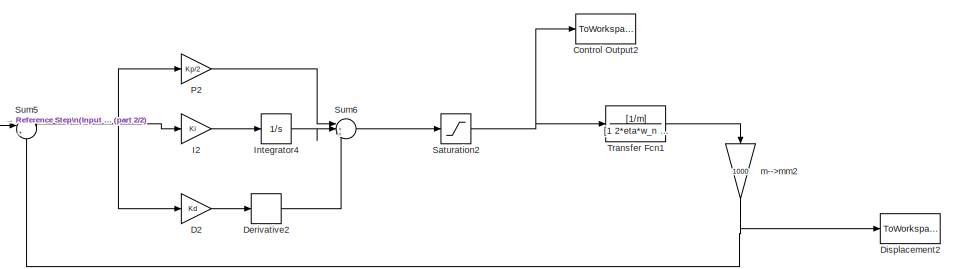
[diagram: root canvas - part 1/2, top center region]
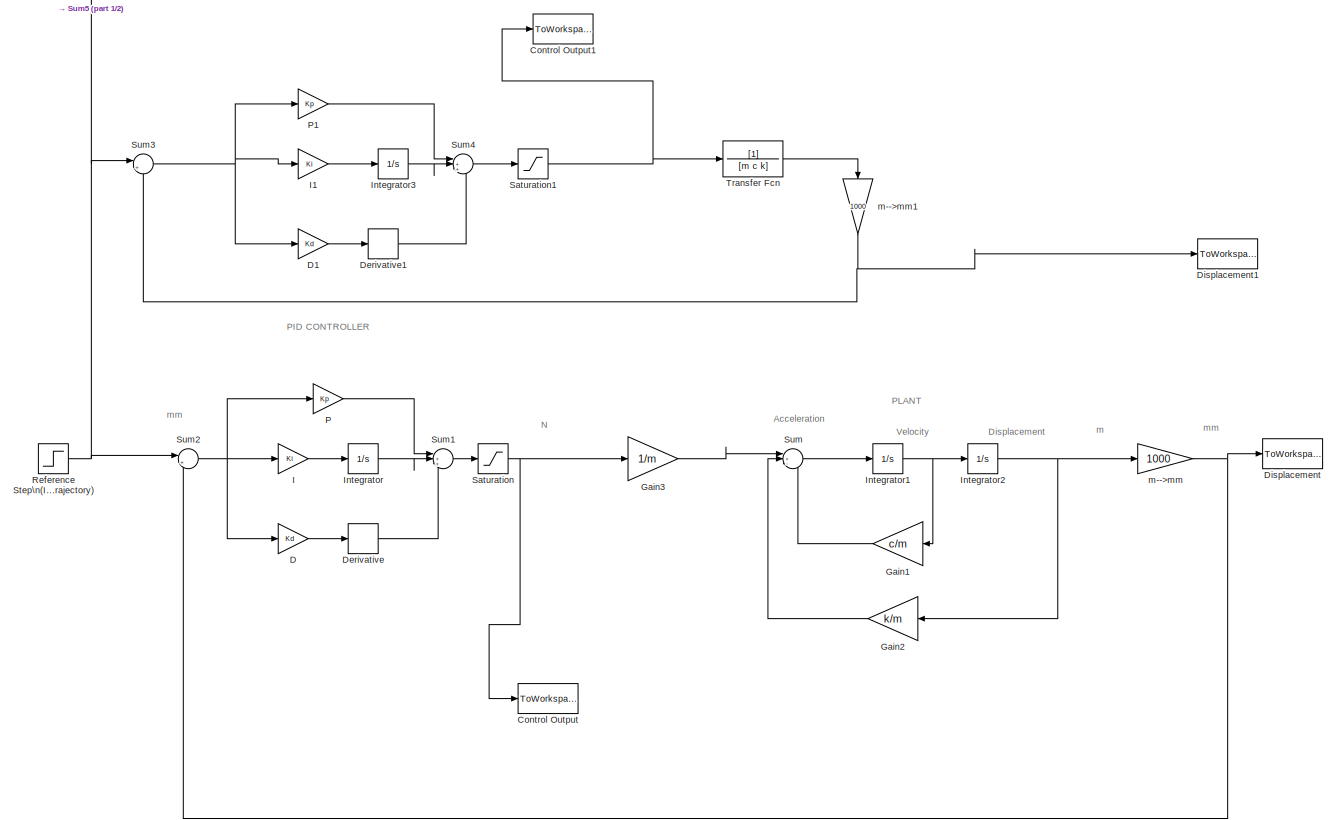
[diagram: root canvas - part 2/2, full width, bottom band]
MODEL sim_control_old_version
KIND model
BLOCK [ToWorkspace] Control Output
  MaxDataPoints = inf
  Ports = [1]
  SID = 1
  SampleTime = -1
  SaveFormat = Timeseries
  VariableName = c_eff
BLOCK [ToWorkspace] Control Output1
  MaxDataPoints = inf
  Ports = [1]
  SID = 39
  SampleTime = -1
  SaveFormat = Timeseries
  VariableName = c_eff1
BLOCK [ToWorkspace] Control Output2
  MaxDataPoints = inf
  Ports = [1]
  SID = 46
  SampleTime = -1
  SaveFormat = Timeseries
  VariableName = c_eff2
BLOCK [Gain] D
  Gain = Kd
  SID = 2
BLOCK [Gain] D1
  Gain = Kd
  SID = 40
BLOCK [Gain] D2
  Gain = Kd
  SID = 47
BLOCK [Derivative] Derivative
  SID = 3
BLOCK [Derivative] Derivative1
  SID = 41
BLOCK [Derivative] Derivative2
  SID = 48
BLOCK [ToWorkspace] Displacement
  MaxDataPoints = inf
  Ports = [1]
  SID = 4
  SampleTime = -1
  SaveFormat = Timeseries
  VariableName = x
BLOCK [ToWorkspace] Displacement1
  MaxDataPoints = inf
  Ports = [1]
  SID = 32
  SampleTime = -1
  SaveFormat = Timeseries
  VariableName = x1
BLOCK [ToWorkspace] Displacement2
  MaxDataPoints = inf
  Ports = [1]
  SID = 57
  SampleTime = -1
  SaveFormat = Timeseries
  VariableName = x2
BLOCK [Gain] Gain1
  Gain = c/m
  SID = 5
BLOCK [Gain] Gain2
  Gain = k/m
  SID = 6
BLOCK [Gain] Gain3
  Gain = 1/m
  NameLocation = top
  SID = 31
BLOCK [Gain] I
  Gain = Ki
  SID = 7
BLOCK [Gain] I1
  Gain = Ki
  SID = 42
BLOCK [Gain] I2
  Gain = Ki
  SID = 49
BLOCK [Integrator] Integrator
  Ports = [1, 1]
  SID = 8
BLOCK [Integrator] Integrator1
  InitialCondition = v0
  Ports = [1, 1]
  SID = 9
BLOCK [Integrator] Integrator2
  InitialCondition = x0
  Ports = [1, 1]
  SID = 10
BLOCK [Integrator] Integrator3
  Ports = [1, 1]
  SID = 43
BLOCK [Integrator] Integrator4
  Ports = [1, 1]
  SID = 50
BLOCK [Gain] P
  Gain = Kp
  SID = 11
BLOCK [Gain] P1
  Gain = Kp
  SID = 44
BLOCK [Gain] P2
  Gain = Kp/2
  SID = 51
BLOCK [Step] Reference Step\n(Input Trajectory)
  After = 3
  SID = 12
  SampleTime = 0.01
BLOCK [Saturate] Saturation
  LowerLimit = -15
  SID = 30
  UpperLimit = 15
BLOCK [Saturate] Saturation1
  LowerLimit = -15
  SID = 38
  UpperLimit = 15
BLOCK [Saturate] Saturation2
  LowerLimit = -15
  SID = 52
  UpperLimit = 15
BLOCK [Sum] Sum
  Inputs = |+--
  Ports = [3, 1]
  SID = 13
BLOCK [Sum] Sum1
  Inputs = |+++
  Ports = [3, 1]
  SID = 14
BLOCK [Sum] Sum2
  Inputs = |+-
  Ports = [2, 1]
  SID = 15
BLOCK [Sum] Sum3
  Inputs = |+-
  Ports = [2, 1]
  SID = 35
BLOCK [Sum] Sum4
  Inputs = |+++
  Ports = [3, 1]
  SID = 45
BLOCK [Sum] Sum5
  Inputs = |+-
  Ports = [2, 1]
  SID = 53
BLOCK [Sum] Sum6
  Inputs = |+++
  Ports = [3, 1]
  SID = 54
BLOCK [TransferFcn] Transfer Fcn
  Denominator = [m c k]
  SID = 33
BLOCK [TransferFcn] Transfer Fcn1
  Denominator = [1 2*eta*w_n w_n^2]
  Numerator = [1/m]
  SID = 55
BLOCK [Gain] m-->mm
  Gain = 1000
  SID = 16
BLOCK [Gain] m-->mm1
  Gain = 1000
  NameLocation = left
  SID = 37
BLOCK [Gain] m-->mm2
  Gain = 1000
  NameLocation = left
  SID = 56
ANNOTATION (root): Acceleration
ANNOTATION (root): Displacement
ANNOTATION (root): N
ANNOTATION (root): PID CONTROLLER
ANNOTATION (root): PLANT
ANNOTATION (root): Velocity
ANNOTATION (root): m
ANNOTATION (root): mm
LINE D1:1 -> Derivative1:1
LINE D2:1 -> Derivative2:1
LINE D:1 -> Derivative:1
LINE Derivative1:1 -> Sum4:3
LINE Derivative2:1 -> Sum6:3
LINE Derivative:1 -> Sum1:3
LINE Gain1:1 -> Sum:3
LINE Gain2:1 -> Sum:2
LINE Gain3:1 -> Sum:1
LINE I1:1 -> Integrator3:1
LINE I2:1 -> Integrator4:1
LINE I:1 -> Integrator:1
NET Integrator1:1 -> Gain1:1, Integrator2:1
NET Integrator2:1 -> Gain2:1, m-->mm:1
LINE Integrator3:1 -> Sum4:2
LINE Integrator4:1 -> Sum6:2
LINE Integrator:1 -> Sum1:2
LINE P1:1 -> Sum4:1
LINE P2:1 -> Sum6:1
LINE P:1 -> Sum1:1
NET Reference Step\n(Input Trajectory):1 -> Sum2:1, Sum3:1, Sum5:1
NET Saturation1:1 -> Control Output1:1, Transfer Fcn:1
NET Saturation2:1 -> Control Output2:1, Transfer Fcn1:1
NET Saturation:1 -> Control Output:1, Gain3:1
LINE Sum1:1 -> Saturation:1
NET Sum2:1 -> D:1, I:1, P:1
NET Sum3:1 -> D1:1, I1:1, P1:1
LINE Sum4:1 -> Saturation1:1
NET Sum5:1 -> D2:1, I2:1, P2:1
LINE Sum6:1 -> Saturation2:1
LINE Sum:1 -> Integrator1:1
LINE Transfer Fcn1:1 -> m-->mm2:1
LINE Transfer Fcn:1 -> m-->mm1:1
NET m-->mm1:1 -> Displacement1:1, Sum3:2
NET m-->mm2:1 -> Displacement2:1, Sum5:2
NET m-->mm:1 -> Displacement:1, Sum2:2
note: NET lines group one-source signal fan-out (src -> all destinations, sorted); 1:1 wires keep LINE
